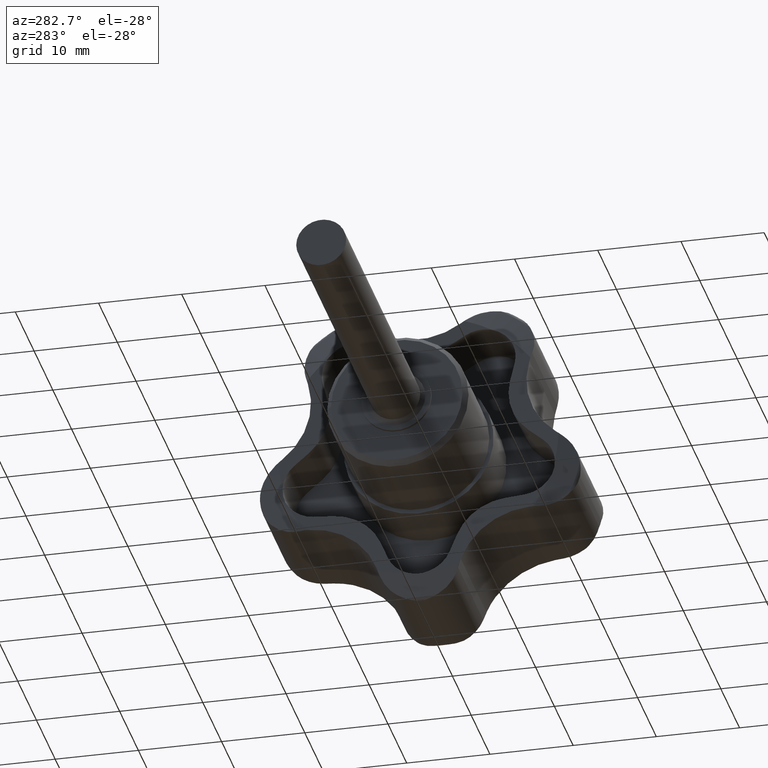
[diagram: clean part render]
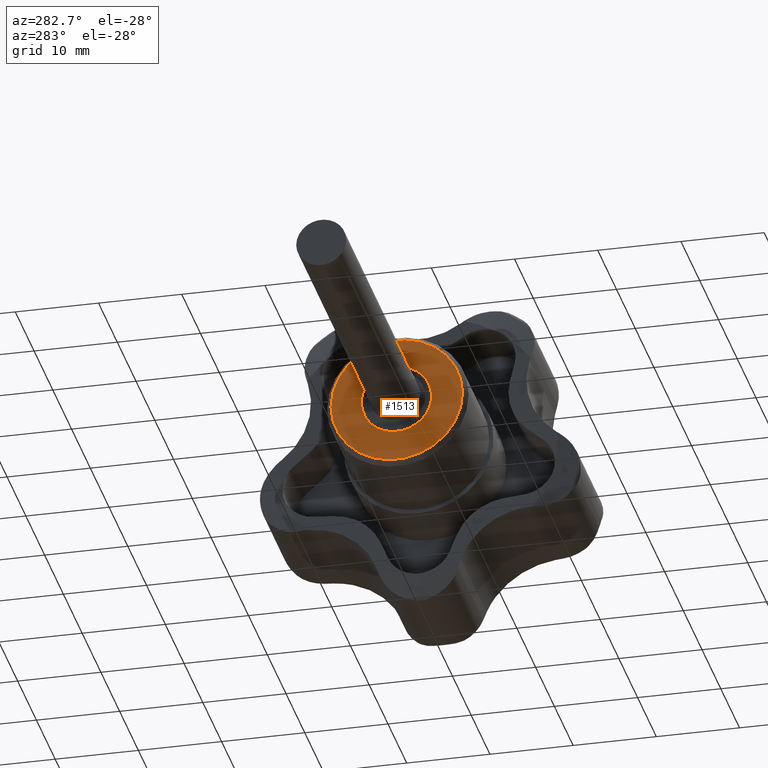
[diagram: same view with one face highlighted and labeled with its STEP entity id]
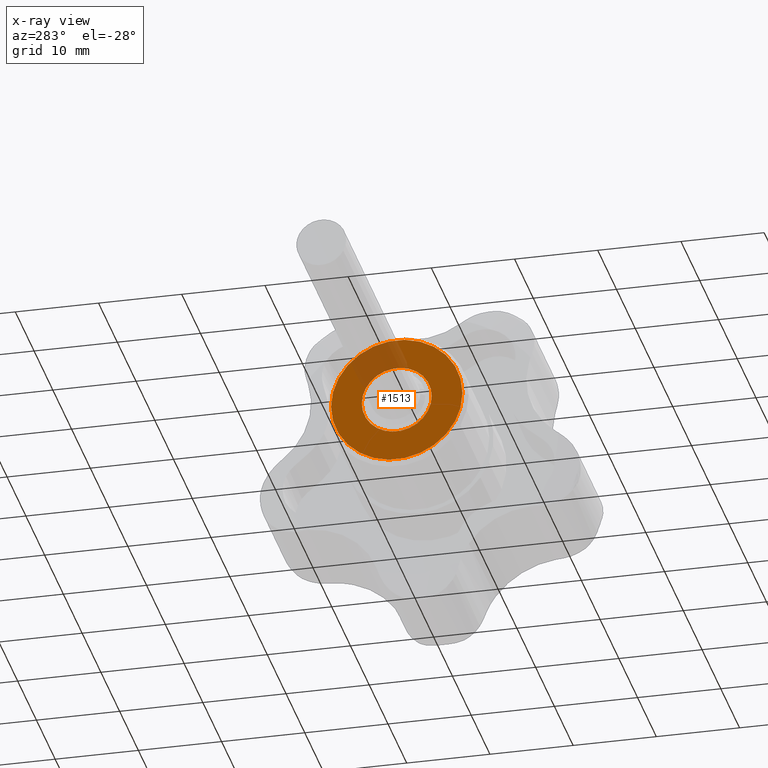
[diagram: x-ray of the same camera — body ghosted, the highlighted face saturated]
A machine part, auxiliary view. The second image highlights one B-rep face of the part: STEP entity #1513.
The next image is the same camera in x-ray: the body ghosted, the highlighted face saturated — about 16% of this face is hidden behind the body in this view.
In plain terms, the highlighted planar face has unit normal (-1, 0, 0).
Its self-contained STEP definition (entity closure, byte-faithful):
#42=PLANE('',#1683);
#298=FACE_BOUND('',#478,.T.);
#381=FACE_OUTER_BOUND('',#477,.T.);
#477=EDGE_LOOP('',(#1390));
#478=EDGE_LOOP('',(#1391));
#495=CIRCLE('',#1536,7.9);
#496=CIRCLE('',#1538,4.2);
#605=VERTEX_POINT('',#2330);
#606=VERTEX_POINT('',#2333);
#760=EDGE_CURVE('',#605,#605,#495,.T.);
#761=EDGE_CURVE('',#606,#606,#496,.T.);
#1390=ORIENTED_EDGE('',*,*,#760,.F.);
#1391=ORIENTED_EDGE('',*,*,#761,.T.);
#1513=ADVANCED_FACE('',(#381,#298),#42,.T.);
#1536=AXIS2_PLACEMENT_3D('',#2331,#1723,#1724);
#1538=AXIS2_PLACEMENT_3D('',#2334,#1727,#1728);
#1683=AXIS2_PLACEMENT_3D('',#3113,#2097,#2098);
#1723=DIRECTION('center_axis',(1.,0.,0.));
#1724=DIRECTION('ref_axis',(0.,-1.,0.));
#1727=DIRECTION('center_axis',(1.,0.,0.));
#1728=DIRECTION('ref_axis',(0.,-1.,0.));
#2097=DIRECTION('center_axis',(-1.,0.,0.));
#2098=DIRECTION('ref_axis',(0.,0.,1.));
#2330=CARTESIAN_POINT('',(0.3,7.9,9.67439019519678E-16));
#2331=CARTESIAN_POINT('Origin',(0.300000000000001,1.836970198721E-17,0.));
#2333=CARTESIAN_POINT('',(0.3,4.2,5.14334668605399E-16));
#2334=CARTESIAN_POINT('Origin',(0.300000000000001,1.836970198721E-17,0.));
#3113=CARTESIAN_POINT('Origin',(0.3,-6.05,-1.48177368812508E-15));